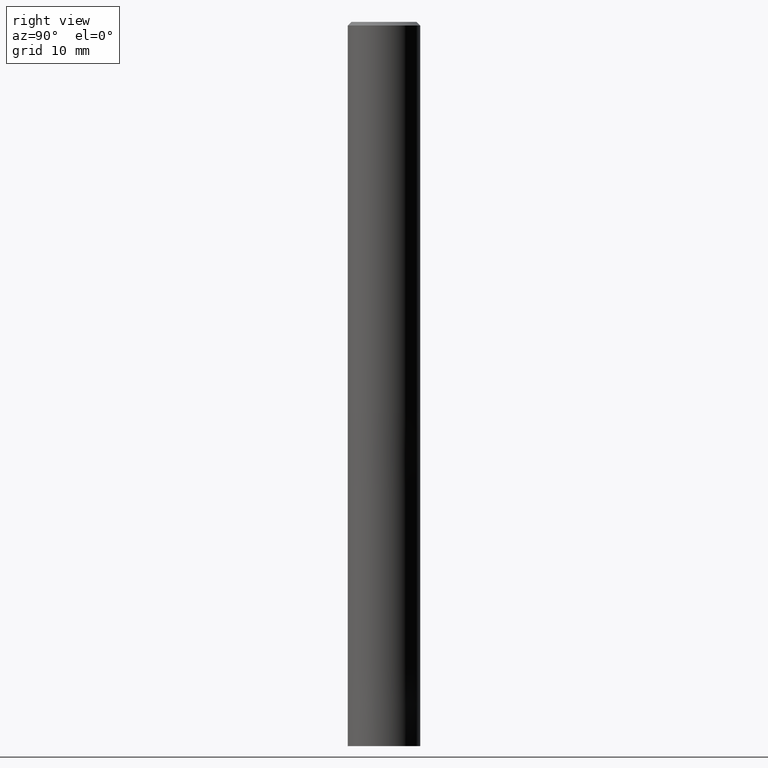
[diagram: clean part render]
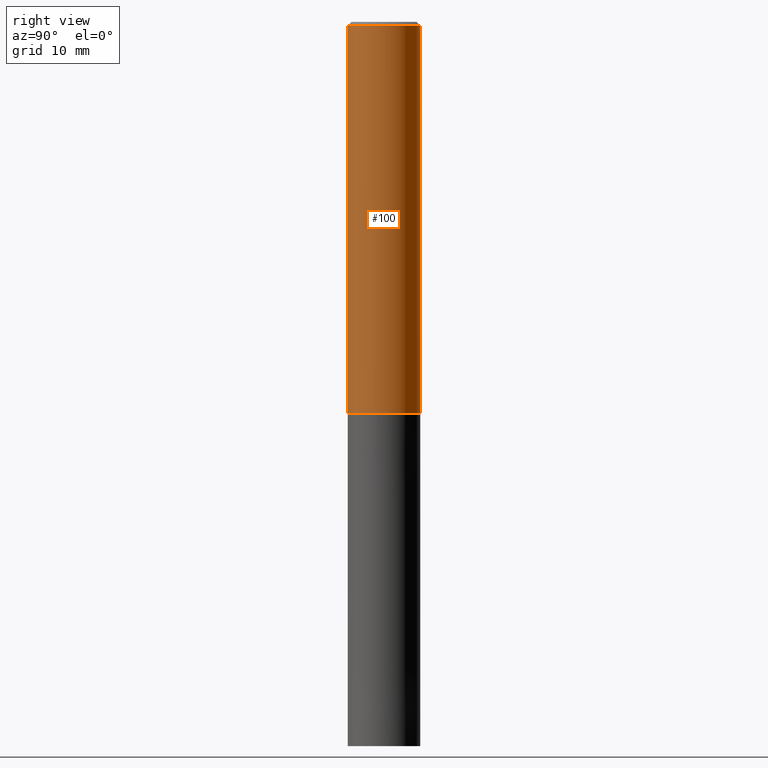
[diagram: same view with one face highlighted and labeled with its STEP entity id]
A machine part, right view. The second image highlights one B-rep face of the part: STEP entity #100.
In plain terms, the highlighted cylindrical surface (edge-blend (fillet) strip) has radius 5 mm, axis along (-0, -0, 1).
Its self-contained STEP definition (entity closure, byte-faithful):
#100=ADVANCED_FACE('',(#246),#247,.T.);
#104=VERTEX_POINT('',#251);
#138=EDGE_CURVE('',#104,#148,#292,.T.);
#148=VERTEX_POINT('',#303);
#168=EDGE_CURVE('',#206,#104,#327,.T.);
#186=EDGE_CURVE('',#214,#148,#347,.T.);
#206=VERTEX_POINT('',#368);
#212=EDGE_CURVE('',#214,#206,#375,.T.);
#214=VERTEX_POINT('',#377);
#246=FACE_OUTER_BOUND('',#402,.T.);
#247=CYLINDRICAL_SURFACE('',#403,5.0);
#251=CARTESIAN_POINT('',(6.12303176911189E-016,-5.0,-54.0));
#292=LINE('',#458,#459);
#303=CARTESIAN_POINT('',(6.12303176911189E-016,-5.0,-0.5));
#327=CIRCLE('',#496,5.0);
#347=CIRCLE('',#522,5.0);
#368=CARTESIAN_POINT('',(0.0,5.0,-54.0));
#375=LINE('',#561,#562);
#377=CARTESIAN_POINT('',(0.0,5.0,-0.5));
#402=EDGE_LOOP('',(#586,#587,#588,#589));
#403=AXIS2_PLACEMENT_3D('',#590,#591,#592);
#458=CARTESIAN_POINT('',(6.12303176911189E-016,-5.0,-27.25));
#459=VECTOR('',#649,1.0);
#496=AXIS2_PLACEMENT_3D('',#689,#690,#691);
#522=AXIS2_PLACEMENT_3D('',#718,#719,#720);
#561=CARTESIAN_POINT('',(-6.12303176911189E-016,5.0,-27.25));
#562=VECTOR('',#750,1.0);
#586=ORIENTED_EDGE('',*,*,#212,.F.);
#587=ORIENTED_EDGE('',*,*,#186,.T.);
#588=ORIENTED_EDGE('',*,*,#138,.F.);
#589=ORIENTED_EDGE('',*,*,#168,.F.);
#590=CARTESIAN_POINT('',(0.0,0.0,-27.25));
#591=DIRECTION('',(-0.0,-0.0,1.0));
#592=DIRECTION('',(0.0,1.0,0.0));
#649=DIRECTION('',(-0.0,-0.0,1.0));
#689=CARTESIAN_POINT('',(0.0,0.0,-54.0));
#690=DIRECTION('',(0.0,0.0,-1.0));
#691=DIRECTION('',(0.0,1.0,0.0));
#718=CARTESIAN_POINT('',(0.0,0.0,-0.5));
#719=DIRECTION('',(0.0,0.0,-1.0));
#720=DIRECTION('',(0.0,1.0,0.0));
#750=DIRECTION('',(0.0,0.0,-1.0));